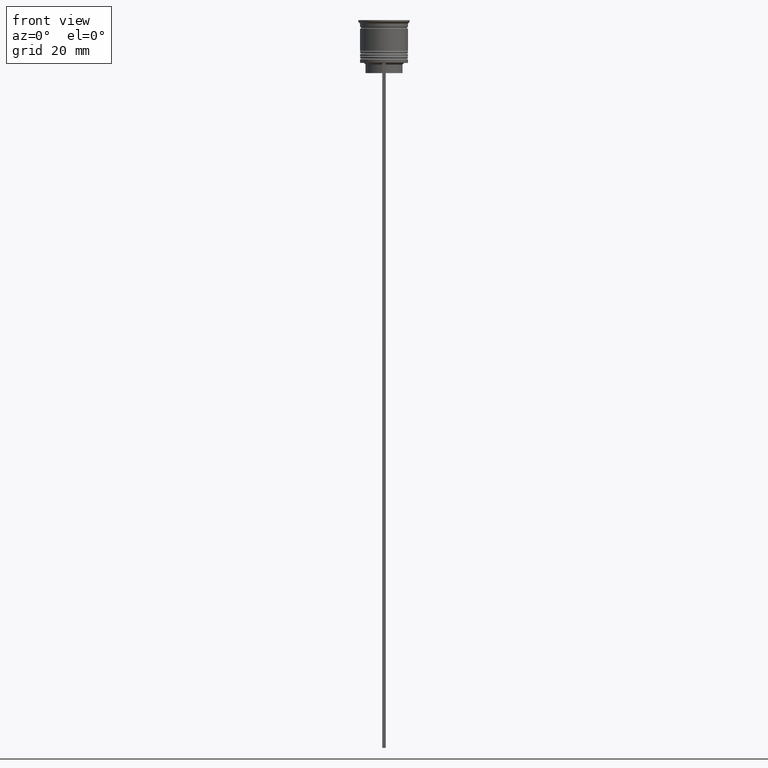
[diagram: clean part render]
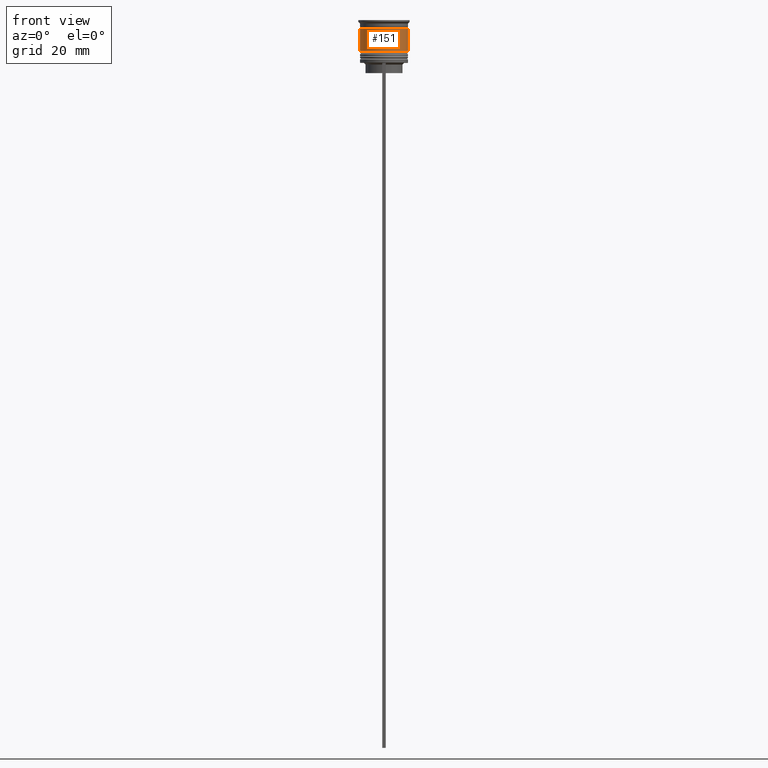
[diagram: same view with one face highlighted and labeled with its STEP entity id]
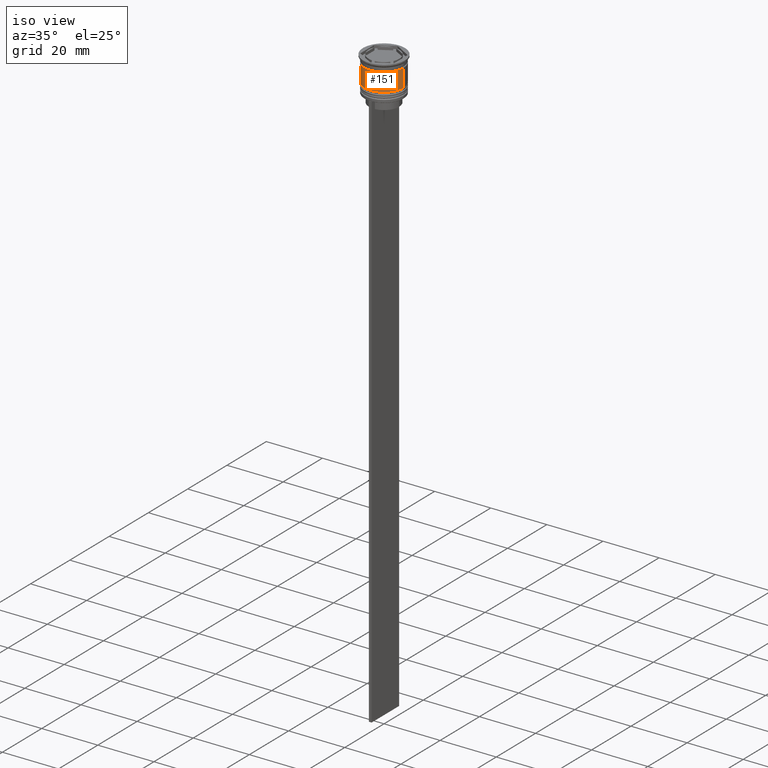
[diagram: same view with one face highlighted and labeled with its STEP entity id]
A machine part, front view. The second image highlights one B-rep face of the part: STEP entity #151.
A second angle (iso view) of the same face is appended — the face is thin or edge-on in the first view.
In plain terms, the highlighted cylindrical surface (edge-blend (fillet) strip) has radius 7 mm, axis along (-0, -0, 1).
Its self-contained STEP definition (entity closure, byte-faithful):
#16 = CIRCLE ( 'NONE', #1755, 6.999999999999997335 ) ;
#86 = DIRECTION ( 'NONE',  ( -0.000000000000000000, -0.000000000000000000, 1.000000000000000000 ) ) ;
#103 = DIRECTION ( 'NONE',  ( -0.000000000000000000, -0.000000000000000000, 1.000000000000000000 ) ) ;
#110 = DIRECTION ( 'NONE',  ( -0.000000000000000000, -0.000000000000000000, 1.000000000000000000 ) ) ;
#132 = AXIS2_PLACEMENT_3D ( 'NONE', #2008, #86, #2402 ) ;
#151 = ADVANCED_FACE ( 'NONE', ( #1919 ), #713, .T. ) ;
#240 = VERTEX_POINT ( 'NONE', #1556 ) ;
#331 = CARTESIAN_POINT ( 'NONE',  ( -6.999999999999997335, 8.572527594031471218E-16, -2.500000000000000444 ) ) ;
#406 = ORIENTED_EDGE ( 'NONE', *, *, #1223, .F. ) ;
#449 = EDGE_CURVE ( 'NONE', #1120, #2048, #1878, .T. ) ;
#539 = EDGE_CURVE ( 'NONE', #1373, #240, #16, .T. ) ;
#713 = CYLINDRICAL_SURFACE ( 'NONE', #1414, 6.999999999999999112 ) ;
#941 = VECTOR ( 'NONE', #103, 1000.000000000000000 ) ;
#1046 = CARTESIAN_POINT ( 'NONE',  ( -6.999999999999999112, 8.572527594031472204E-16, 0.000000000000000000 ) ) ;
#1063 = CARTESIAN_POINT ( 'NONE',  ( 7.000000000000000888, 0.000000000000000000, -9.000000000000001776 ) ) ;
#1092 = DIRECTION ( 'NONE',  ( -0.000000000000000000, -0.000000000000000000, 1.000000000000000000 ) ) ;
#1120 = VERTEX_POINT ( 'NONE', #1161 ) ;
#1161 = CARTESIAN_POINT ( 'NONE',  ( -7.000000000000000888, 8.572527594031474176E-16, -9.000000000000001776 ) ) ;
#1223 = EDGE_CURVE ( 'NONE', #1120, #1373, #1855, .T. ) ;
#1373 = VERTEX_POINT ( 'NONE', #331 ) ;
#1392 = VECTOR ( 'NONE', #2191, 1000.000000000000000 ) ;
#1406 = CARTESIAN_POINT ( 'NONE',  ( 6.999999999999999112, 0.000000000000000000, 0.000000000000000000 ) ) ;
#1414 = AXIS2_PLACEMENT_3D ( 'NONE', #2470, #1092, #2235 ) ;
#1464 = ORIENTED_EDGE ( 'NONE', *, *, #539, .F. ) ;
#1481 = CARTESIAN_POINT ( 'NONE',  ( 0.000000000000000000, 0.000000000000000000, -2.500000000000000444 ) ) ;
#1540 = ORIENTED_EDGE ( 'NONE', *, *, #449, .T. ) ;
#1556 = CARTESIAN_POINT ( 'NONE',  ( 6.999999999999997335, 0.000000000000000000, -2.500000000000000444 ) ) ;
#1665 = EDGE_CURVE ( 'NONE', #2048, #240, #2367, .T. ) ;
#1755 = AXIS2_PLACEMENT_3D ( 'NONE', #1481, #110, #2076 ) ;
#1777 = EDGE_LOOP ( 'NONE', ( #406, #1540, #2119, #1464 ) ) ;
#1855 = LINE ( 'NONE', #1046, #941 ) ;
#1878 = CIRCLE ( 'NONE', #132, 7.000000000000000888 ) ;
#1919 = FACE_OUTER_BOUND ( 'NONE', #1777, .T. ) ;
#2008 = CARTESIAN_POINT ( 'NONE',  ( 0.000000000000000000, 0.000000000000000000, -9.000000000000001776 ) ) ;
#2048 = VERTEX_POINT ( 'NONE', #1063 ) ;
#2076 = DIRECTION ( 'NONE',  ( 1.000000000000000000, 0.000000000000000000, 0.000000000000000000 ) ) ;
#2119 = ORIENTED_EDGE ( 'NONE', *, *, #1665, .T. ) ;
#2191 = DIRECTION ( 'NONE',  ( -0.000000000000000000, -0.000000000000000000, 1.000000000000000000 ) ) ;
#2235 = DIRECTION ( 'NONE',  ( 1.000000000000000000, 0.000000000000000000, 0.000000000000000000 ) ) ;
#2367 = LINE ( 'NONE', #1406, #1392 ) ;
#2402 = DIRECTION ( 'NONE',  ( 1.000000000000000000, 0.000000000000000000, 0.000000000000000000 ) ) ;
#2470 = CARTESIAN_POINT ( 'NONE',  ( 0.000000000000000000, 0.000000000000000000, 0.000000000000000000 ) ) ;